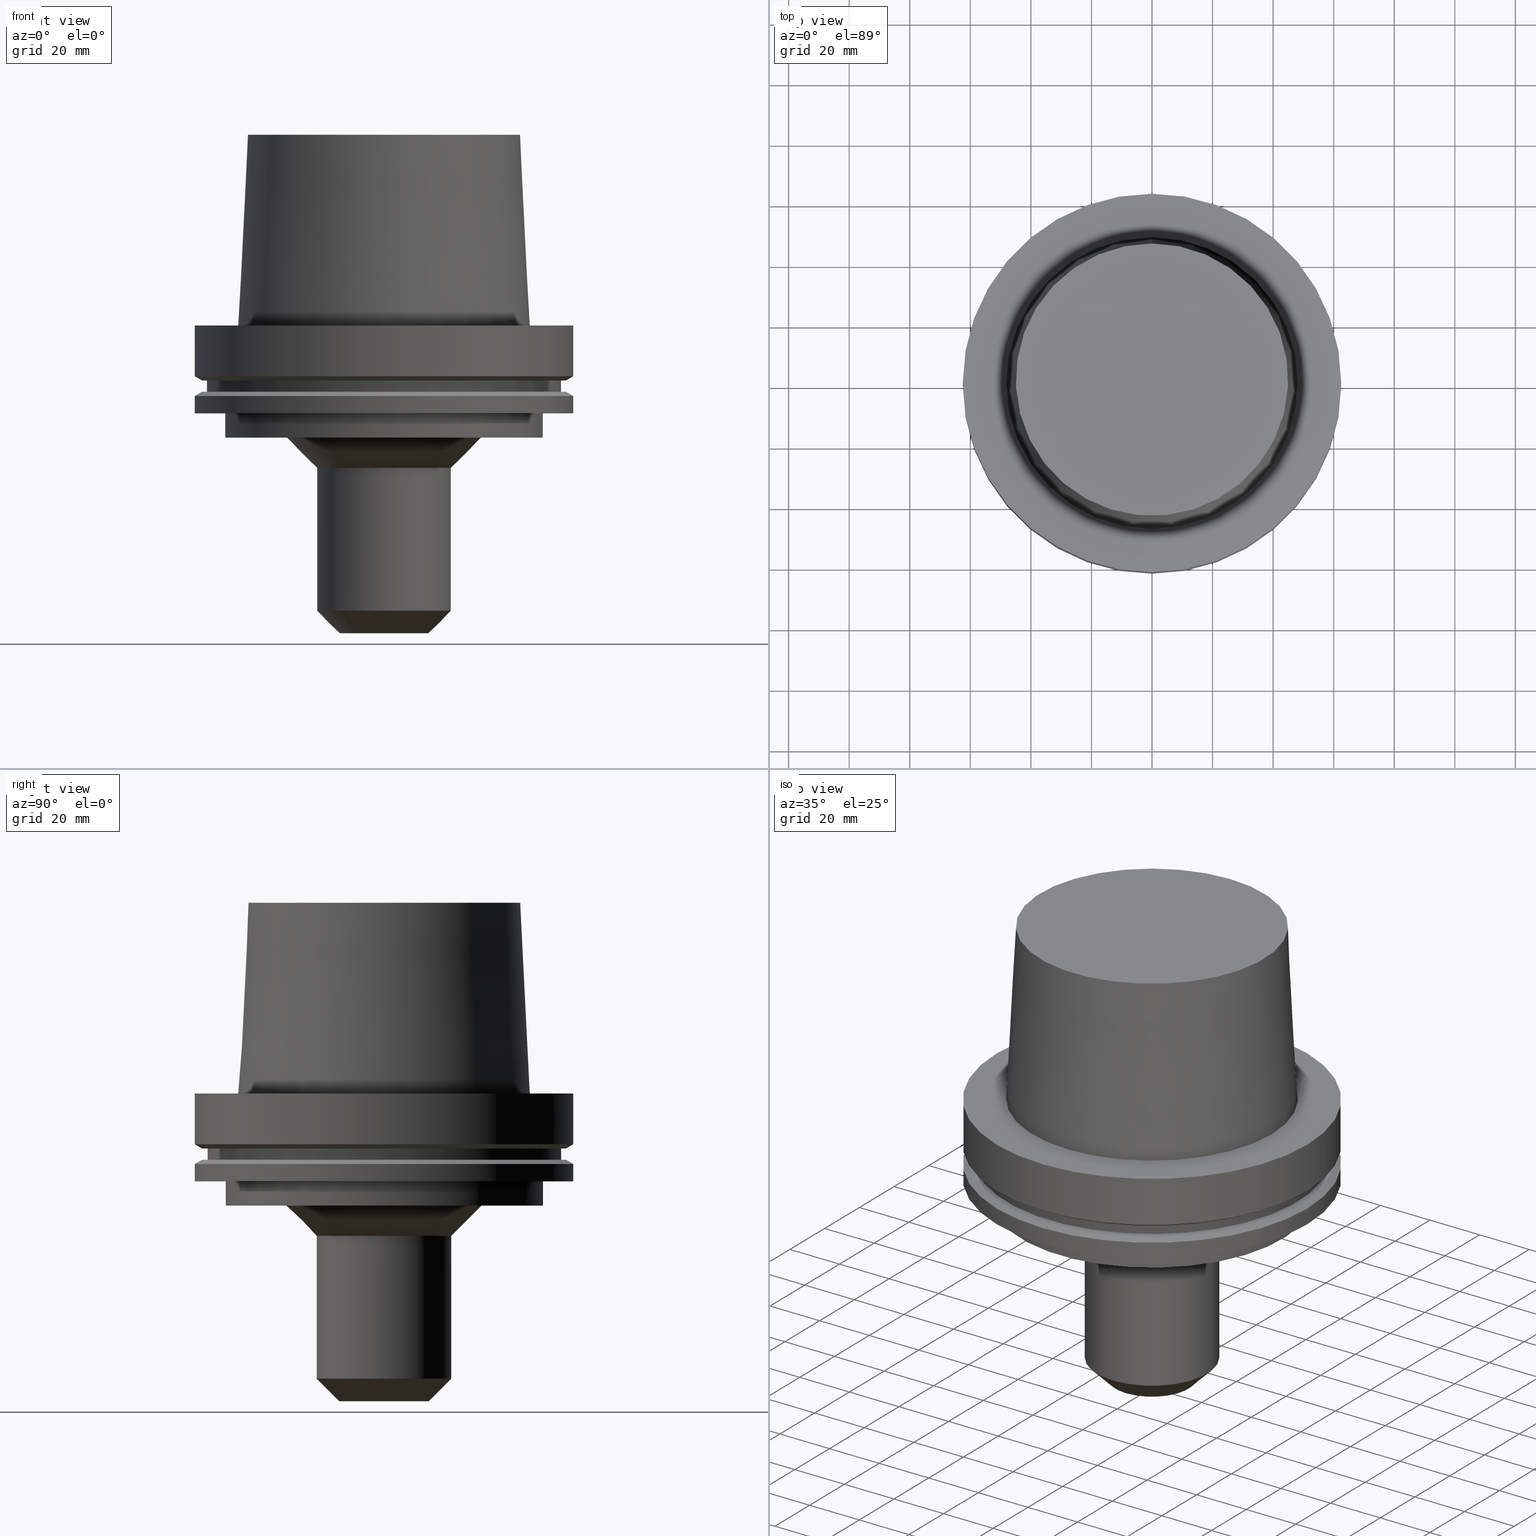
[diagram: canonical four-view strip — front | top / right | iso, engineering-drawing reading convention]
A machine part, canonical four-view strip (front | top / right | iso — engineering-drawing reading convention). The complete STEP part file that produces these views, byte-faithful:
ISO-10303-21;
HEADER;
FILE_DESCRIPTION((''),'1');
FILE_NAME('V:/02_3D_Field-HP\X2\FF71FF6FFF8CFF9F5916\X0\2013/02_Step_Field-HP\X2\FF71FF6FFF8CFF9F5916\X0\2013/HSK-A125-EM.750-4.stp','2017-07-11T00:15:30',(''),(''),'Spatial Interop R21 SP3','Kubotek KeyCreator 2011 V10.0.2 (22737)',' ');
FILE_SCHEMA(('automotive_design'));
ENDSEC;
DATA;
#1=MECHANICAL_DESIGN_GEOMETRIC_PRESENTATION_REPRESENTATION(' ',(#10,#11,#12,#13,#14,#15,#16,#17,#18,#19,#20,#21,#22,#23,#24,#25,#26,#27,#28,#29,#30,#31,#32,#33,#34,#35,#36,#37,#38,#39,#40,#41,#42,#43),#6);
#2=PRODUCT_DEFINITION_CONTEXT('',#44,'design');
#3=APPLICATION_PROTOCOL_DEFINITION('INTERNATIONAL STANDARD','automotive_design',1994,#44);
#4=PRODUCT_CATEGORY_RELATIONSHIP('NONE','NONE',#45,#46);
#5=SHAPE_DEFINITION_REPRESENTATION(#47,#48);
#6= (GEOMETRIC_REPRESENTATION_CONTEXT(3)GLOBAL_UNCERTAINTY_ASSIGNED_CONTEXT((#51))GLOBAL_UNIT_ASSIGNED_CONTEXT((#53,#54,#55))REPRESENTATION_CONTEXT('NONE','WORKSPACE'));
#10=STYLED_ITEM('',(#57,#58),#59);
#11=STYLED_ITEM('',(#60,#61),#62);
#12=STYLED_ITEM('',(#63),#64);
#13=STYLED_ITEM('',(#65),#66);
#14=STYLED_ITEM('',(#67),#68);
#15=STYLED_ITEM('',(#69,#70),#71);
#16=STYLED_ITEM('',(#72,#73),#74);
#17=STYLED_ITEM('',(#75,#76),#77);
#18=STYLED_ITEM('',(#78,#79),#80);
#19=STYLED_ITEM('',(#81,#82),#83);
#20=STYLED_ITEM('',(#84),#85);
#21=STYLED_ITEM('',(#86),#87);
#22=STYLED_ITEM('',(#88),#89);
#23=STYLED_ITEM('',(#90,#91),#92);
#24=STYLED_ITEM('',(#93,#94),#95);
#25=STYLED_ITEM('',(#96),#97);
#26=STYLED_ITEM('',(#98,#99),#100);
#27=STYLED_ITEM('',(#101),#102);
#28=STYLED_ITEM('',(#103),#104);
#29=STYLED_ITEM('',(#105,#106),#107);
#30=STYLED_ITEM('',(#108),#109);
#31=STYLED_ITEM('',(#110),#111);
#32=STYLED_ITEM('',(#112),#113);
#33=STYLED_ITEM('',(#114,#115),#116);
#34=STYLED_ITEM('',(#117,#118),#119);
#35=STYLED_ITEM('',(#120,#121),#122);
#36=STYLED_ITEM('',(#123,#124),#125);
#37=STYLED_ITEM('',(#126,#127),#128);
#38=STYLED_ITEM('',(#129),#130);
#39=STYLED_ITEM('',(#131,#132),#133);
#40=STYLED_ITEM('',(#134),#135);
#41=STYLED_ITEM('',(#136),#137);
#42=STYLED_ITEM('',(#138),#139);
#43=STYLED_ITEM('',(#140,#141),#142);
#44=APPLICATION_CONTEXT(' ');
#45=PRODUCT_CATEGORY('part','NONE');
#46=PRODUCT_RELATED_PRODUCT_CATEGORY('detail',' ',(#143));
#47=PRODUCT_DEFINITION_SHAPE('NONE','NONE',#144);
#48=ADVANCED_BREP_SHAPE_REPRESENTATION('Unnamed[1]',(#71,#145),#6);
#51=UNCERTAINTY_MEASURE_WITH_UNIT(LENGTH_MEASURE(1.0E-006),#53,'','');
#53= (CONVERSION_BASED_UNIT('MILLIMETRE',#148)LENGTH_UNIT()NAMED_UNIT(#151));
#54= (NAMED_UNIT(#153)PLANE_ANGLE_UNIT()SI_UNIT($,.RADIAN.));
#55= (NAMED_UNIT(#153)SOLID_ANGLE_UNIT()SI_UNIT($,.STERADIAN.));
#57=PRESENTATION_STYLE_ASSIGNMENT((#159));
#58=PRESENTATION_STYLE_ASSIGNMENT((#160));
#59=ADVANCED_FACE('Unnamed[1]',(#161,#162),#163,.T.);
#60=PRESENTATION_STYLE_ASSIGNMENT((#164));
#61=PRESENTATION_STYLE_ASSIGNMENT((#165));
#62=ADVANCED_FACE('Unnamed[1]',(#166),#167,.T.);
#63=PRESENTATION_STYLE_ASSIGNMENT((#168));
#64=EDGE_CURVE('Unnamed[1]',#169,#169,#170,.T.);
#65=PRESENTATION_STYLE_ASSIGNMENT((#171));
#66=EDGE_CURVE('Unnamed[1]',#172,#172,#173,.T.);
#67=PRESENTATION_STYLE_ASSIGNMENT((#174));
#68=EDGE_CURVE('Unnamed[1]',#175,#175,#176,.T.);
#69=PRESENTATION_STYLE_ASSIGNMENT((#177));
#70=PRESENTATION_STYLE_ASSIGNMENT((#178));
#71=MANIFOLD_SOLID_BREP('Unnamed[1]',#179);
#72=PRESENTATION_STYLE_ASSIGNMENT((#180));
#73=PRESENTATION_STYLE_ASSIGNMENT((#181));
#74=ADVANCED_FACE('Unnamed[1]',(#182,#183),#184,.T.);
#75=PRESENTATION_STYLE_ASSIGNMENT((#185));
#76=PRESENTATION_STYLE_ASSIGNMENT((#186));
#77=ADVANCED_FACE('Unnamed[1]',(#187),#188,.T.);
#78=PRESENTATION_STYLE_ASSIGNMENT((#189));
#79=PRESENTATION_STYLE_ASSIGNMENT((#190));
#80=ADVANCED_FACE('Unnamed[1]',(#191,#192),#193,.T.);
#81=PRESENTATION_STYLE_ASSIGNMENT((#194));
#82=PRESENTATION_STYLE_ASSIGNMENT((#195));
#83=ADVANCED_FACE('Unnamed[1]',(#196,#197),#198,.T.);
#84=PRESENTATION_STYLE_ASSIGNMENT((#199));
#85=EDGE_CURVE('Unnamed[1]',#200,#200,#201,.T.);
#86=PRESENTATION_STYLE_ASSIGNMENT((#202));
#87=EDGE_CURVE('Unnamed[1]',#203,#203,#204,.T.);
#88=PRESENTATION_STYLE_ASSIGNMENT((#205));
#89=EDGE_CURVE('Unnamed[1]',#206,#206,#207,.T.);
#90=PRESENTATION_STYLE_ASSIGNMENT((#208));
#91=PRESENTATION_STYLE_ASSIGNMENT((#209));
#92=ADVANCED_FACE('Unnamed[1]',(#210,#211),#212,.T.);
#93=PRESENTATION_STYLE_ASSIGNMENT((#213));
#94=PRESENTATION_STYLE_ASSIGNMENT((#214));
#95=ADVANCED_FACE('Unnamed[1]',(#215,#216),#217,.T.);
#96=PRESENTATION_STYLE_ASSIGNMENT((#218));
#97=EDGE_CURVE('Unnamed[1]',#219,#219,#220,.T.);
#98=PRESENTATION_STYLE_ASSIGNMENT((#221));
#99=PRESENTATION_STYLE_ASSIGNMENT((#222));
#100=ADVANCED_FACE('Unnamed[1]',(#223,#224),#225,.T.);
#101=PRESENTATION_STYLE_ASSIGNMENT((#226));
#102=EDGE_CURVE('Unnamed[1]',#227,#227,#228,.T.);
#103=PRESENTATION_STYLE_ASSIGNMENT((#229));
#104=EDGE_CURVE('Unnamed[1]',#230,#230,#231,.T.);
#105=PRESENTATION_STYLE_ASSIGNMENT((#232));
#106=PRESENTATION_STYLE_ASSIGNMENT((#233));
#107=ADVANCED_FACE('Unnamed[1]',(#234,#235),#236,.T.);
#108=PRESENTATION_STYLE_ASSIGNMENT((#237));
#109=EDGE_CURVE('Unnamed[1]',#238,#238,#239,.T.);
#110=PRESENTATION_STYLE_ASSIGNMENT((#240));
#111=EDGE_CURVE('Unnamed[1]',#241,#241,#242,.T.);
#112=PRESENTATION_STYLE_ASSIGNMENT((#243));
#113=EDGE_CURVE('Unnamed[1]',#244,#244,#245,.T.);
#114=PRESENTATION_STYLE_ASSIGNMENT((#246));
#115=PRESENTATION_STYLE_ASSIGNMENT((#247));
#116=ADVANCED_FACE('Unnamed[1]',(#248,#249),#250,.T.);
#117=PRESENTATION_STYLE_ASSIGNMENT((#251));
#118=PRESENTATION_STYLE_ASSIGNMENT((#252));
#119=ADVANCED_FACE('Unnamed[1]',(#253,#254),#255,.T.);
#120=PRESENTATION_STYLE_ASSIGNMENT((#256));
#121=PRESENTATION_STYLE_ASSIGNMENT((#257));
#122=ADVANCED_FACE('Unnamed[1]',(#258,#259),#260,.T.);
#123=PRESENTATION_STYLE_ASSIGNMENT((#261));
#124=PRESENTATION_STYLE_ASSIGNMENT((#262));
#125=ADVANCED_FACE('Unnamed[1]',(#263,#264),#265,.T.);
#126=PRESENTATION_STYLE_ASSIGNMENT((#266));
#127=PRESENTATION_STYLE_ASSIGNMENT((#267));
#128=ADVANCED_FACE('Unnamed[1]',(#268,#269),#270,.T.);
#129=PRESENTATION_STYLE_ASSIGNMENT((#271));
#130=EDGE_CURVE('Unnamed[1]',#272,#272,#273,.T.);
#131=PRESENTATION_STYLE_ASSIGNMENT((#274));
#132=PRESENTATION_STYLE_ASSIGNMENT((#275));
#133=ADVANCED_FACE('Unnamed[1]',(#276,#277),#278,.T.);
#134=PRESENTATION_STYLE_ASSIGNMENT((#279));
#135=EDGE_CURVE('Unnamed[1]',#280,#280,#281,.T.);
#136=PRESENTATION_STYLE_ASSIGNMENT((#282));
#137=EDGE_CURVE('Unnamed[1]',#283,#283,#284,.T.);
#138=PRESENTATION_STYLE_ASSIGNMENT((#285));
#139=EDGE_CURVE('Unnamed[1]',#286,#286,#287,.T.);
#140=PRESENTATION_STYLE_ASSIGNMENT((#288));
#141=PRESENTATION_STYLE_ASSIGNMENT((#289));
#142=ADVANCED_FACE('Unnamed[1]',(#290,#291),#292,.T.);
#143=PRODUCT('Unnamed[1]','Unnamed[1]','PART-Unnamed[1]-DESC',(#293));
#144=PRODUCT_DEFINITION('NONE','NONE',#294,#2);
#145=AXIS2_PLACEMENT_3D('',#295,#296,#297);
#148=LENGTH_MEASURE_WITH_UNIT(LENGTH_MEASURE(1.0),#298);
#151=DIMENSIONAL_EXPONENTS(1.0,0.0,0.0,0.0,0.0,0.0,0.0);
#153=DIMENSIONAL_EXPONENTS(0.0,0.0,0.0,0.0,0.0,0.0,0.0);
#159=SURFACE_STYLE_USAGE(.BOTH.,#299);
#160=CURVE_STYLE('',#300,POSITIVE_LENGTH_MEASURE(1000.0),#301);
#161=FACE_BOUND('',#302,.T.);
#162=FACE_BOUND('',#303,.T.);
#163=CYLINDRICAL_SURFACE('',#304,52.5);
#164=SURFACE_STYLE_USAGE(.BOTH.,#305);
#165=CURVE_STYLE('',#306,POSITIVE_LENGTH_MEASURE(1000.0),#307);
#166=FACE_OUTER_BOUND('',#308,.T.);
#167=PLANE('',#309);
#168=CURVE_STYLE('',#310,POSITIVE_LENGTH_MEASURE(1000.0),#311);
#169=VERTEX_POINT('',#312);
#170=CIRCLE('',#313,22.225);
#171=CURVE_STYLE('',#314,POSITIVE_LENGTH_MEASURE(1000.0),#315);
#172=VERTEX_POINT('',#316);
#173=CIRCLE('',#317,52.5000000000003);
#174=CURVE_STYLE('',#318,POSITIVE_LENGTH_MEASURE(1000.0),#319);
#175=VERTEX_POINT('',#320);
#176=CIRCLE('',#321,60.1225952641912);
#177=SURFACE_STYLE_USAGE(.BOTH.,#322);
#178=CURVE_STYLE('',#323,POSITIVE_LENGTH_MEASURE(1000.0),#324);
#179=CLOSED_SHELL('',(#62,#128,#107,#83,#116,#125,#95,#100,#80,#142,#122,#59,#92,#133,#119,#74,#77));
#180=SURFACE_STYLE_USAGE(.BOTH.,#325);
#181=CURVE_STYLE('',#326,POSITIVE_LENGTH_MEASURE(1000.0),#327);
#182=FACE_BOUND('',#328,.T.);
#183=FACE_BOUND('',#329,.T.);
#184=CONICAL_SURFACE('',#330,18.4875,0.785398163397426);
#185=SURFACE_STYLE_USAGE(.BOTH.,#331);
#186=CURVE_STYLE('',#332,POSITIVE_LENGTH_MEASURE(1000.0),#333);
#187=FACE_OUTER_BOUND('',#334,.T.);
#188=PLANE('',#335);
#189=SURFACE_STYLE_USAGE(.BOTH.,#336);
#190=CURVE_STYLE('',#337,POSITIVE_LENGTH_MEASURE(1000.0),#338);
#191=FACE_BOUND('',#339,.T.);
#192=FACE_BOUND('',#340,.T.);
#193=CONICAL_SURFACE('',#341,61.311297632097,1.04719755119646);
#194=SURFACE_STYLE_USAGE(.BOTH.,#342);
#195=CURVE_STYLE('',#343,POSITIVE_LENGTH_MEASURE(1000.0),#344);
#196=FACE_BOUND('',#345,.T.);
#197=FACE_BOUND('',#346,.T.);
#198=CYLINDRICAL_SURFACE('',#347,62.5000000000001);
#199=CURVE_STYLE('',#348,POSITIVE_LENGTH_MEASURE(1000.0),#349);
#200=VERTEX_POINT('',#350);
#201=CIRCLE('',#351,62.5000000000002);
#202=CURVE_STYLE('',#352,POSITIVE_LENGTH_MEASURE(1000.0),#353);
#203=VERTEX_POINT('',#354);
#204=CIRCLE('',#355,44.9779398797591);
#205=CURVE_STYLE('',#356,POSITIVE_LENGTH_MEASURE(1000.0),#357);
#206=VERTEX_POINT('',#358);
#207=CIRCLE('',#359,62.5);
#208=SURFACE_STYLE_USAGE(.BOTH.,#360);
#209=CURVE_STYLE('',#361,POSITIVE_LENGTH_MEASURE(1000.0),#362);
#210=FACE_BOUND('',#363,.T.);
#211=FACE_OUTER_BOUND('',#364,.T.);
#212=PLANE('',#365);
#213=SURFACE_STYLE_USAGE(.BOTH.,#366);
#214=CURVE_STYLE('',#367,POSITIVE_LENGTH_MEASURE(1000.0),#368);
#215=FACE_BOUND('',#369,.T.);
#216=FACE_BOUND('',#370,.T.);
#217=CYLINDRICAL_SURFACE('',#371,58.4999999999999);
#218=CURVE_STYLE('',#372,POSITIVE_LENGTH_MEASURE(1000.0),#373);
#219=VERTEX_POINT('',#374);
#220=CIRCLE('',#375,62.5);
#221=SURFACE_STYLE_USAGE(.BOTH.,#376);
#222=CURVE_STYLE('',#377,POSITIVE_LENGTH_MEASURE(1000.0),#378);
#223=FACE_OUTER_BOUND('',#379,.T.);
#224=FACE_BOUND('',#380,.T.);
#225=PLANE('',#381);
#226=CURVE_STYLE('',#382,POSITIVE_LENGTH_MEASURE(1000.0),#383);
#227=VERTEX_POINT('',#384);
#228=CIRCLE('',#385,32.225);
#229=CURVE_STYLE('',#386,POSITIVE_LENGTH_MEASURE(1000.0),#387);
#230=VERTEX_POINT('',#388);
#231=CIRCLE('',#389,14.75);
#232=SURFACE_STYLE_USAGE(.BOTH.,#390);
#233=CURVE_STYLE('',#391,POSITIVE_LENGTH_MEASURE(1000.0),#392);
#234=FACE_OUTER_BOUND('',#393,.T.);
#235=FACE_BOUND('',#394,.T.);
#236=PLANE('',#395);
#237=CURVE_STYLE('',#396,POSITIVE_LENGTH_MEASURE(1000.0),#397);
#238=VERTEX_POINT('',#398);
#239=CIRCLE('',#399,60.122595264194);
#240=CURVE_STYLE('',#400,POSITIVE_LENGTH_MEASURE(1000.0),#401);
#241=VERTEX_POINT('',#402);
#242=CIRCLE('',#403,58.5);
#243=CURVE_STYLE('',#404,POSITIVE_LENGTH_MEASURE(1000.0),#405);
#244=VERTEX_POINT('',#406);
#245=CIRCLE('',#407,52.4999999999998);
#246=SURFACE_STYLE_USAGE(.BOTH.,#408);
#247=CURVE_STYLE('',#409,POSITIVE_LENGTH_MEASURE(1000.0),#410);
#248=FACE_BOUND('',#411,.T.);
#249=FACE_BOUND('',#412,.T.);
#250=CONICAL_SURFACE('',#413,61.3112976320956,1.04719755119668);
#251=SURFACE_STYLE_USAGE(.BOTH.,#414);
#252=CURVE_STYLE('',#415,POSITIVE_LENGTH_MEASURE(1000.0),#416);
#253=FACE_BOUND('',#417,.T.);
#254=FACE_BOUND('',#418,.T.);
#255=CYLINDRICAL_SURFACE('',#419,22.225);
#256=SURFACE_STYLE_USAGE(.BOTH.,#420);
#257=CURVE_STYLE('',#421,POSITIVE_LENGTH_MEASURE(1000.0),#422);
#258=FACE_BOUND('',#423,.T.);
#259=FACE_OUTER_BOUND('',#424,.T.);
#260=PLANE('',#425);
#261=SURFACE_STYLE_USAGE(.BOTH.,#426);
#262=CURVE_STYLE('',#427,POSITIVE_LENGTH_MEASURE(1000.0),#428);
#263=FACE_BOUND('',#429,.T.);
#264=FACE_OUTER_BOUND('',#430,.T.);
#265=PLANE('',#431);
#266=SURFACE_STYLE_USAGE(.BOTH.,#432);
#267=CURVE_STYLE('',#433,POSITIVE_LENGTH_MEASURE(1000.0),#434);
#268=FACE_BOUND('',#435,.T.);
#269=FACE_BOUND('',#436,.T.);
#270=CONICAL_SURFACE('',#437,46.5560961923844,0.0500583457465964);
#271=CURVE_STYLE('',#438,POSITIVE_LENGTH_MEASURE(1000.0),#439);
#272=VERTEX_POINT('',#440);
#273=CIRCLE('',#441,22.225);
#274=SURFACE_STYLE_USAGE(.BOTH.,#442);
#275=CURVE_STYLE('',#443,POSITIVE_LENGTH_MEASURE(1000.0),#444);
#276=FACE_BOUND('',#445,.T.);
#277=FACE_BOUND('',#446,.T.);
#278=CONICAL_SURFACE('',#447,27.225,0.785398163397449);
#279=CURVE_STYLE('',#448,POSITIVE_LENGTH_MEASURE(1000.0),#449);
#280=VERTEX_POINT('',#450);
#281=CIRCLE('',#451,58.4999999999998);
#282=CURVE_STYLE('',#452,POSITIVE_LENGTH_MEASURE(1000.0),#453);
#283=VERTEX_POINT('',#454);
#284=CIRCLE('',#455,48.1342525050097);
#285=CURVE_STYLE('',#456,POSITIVE_LENGTH_MEASURE(1000.0),#457);
#286=VERTEX_POINT('',#458);
#287=CIRCLE('',#459,62.5);
#288=SURFACE_STYLE_USAGE(.BOTH.,#460);
#289=CURVE_STYLE('',#461,POSITIVE_LENGTH_MEASURE(1000.0),#462);
#290=FACE_BOUND('',#463,.T.);
#291=FACE_BOUND('',#464,.T.);
#292=CYLINDRICAL_SURFACE('',#465,62.5);
#293=PRODUCT_CONTEXT('',#44,'mechanical');
#294=PRODUCT_DEFINITION_FORMATION_WITH_SPECIFIED_SOURCE(' ','NONE',#143,.NOT_KNOWN.);
#295=CARTESIAN_POINT('',(0.0,0.0,0.0));
#296=DIRECTION('',(0.0,0.0,1.0));
#297=DIRECTION('',(1.0,0.0,0.0));
#298= (NAMED_UNIT(#151)LENGTH_UNIT()SI_UNIT(.MILLI.,.METRE.));
#299=SURFACE_SIDE_STYLE('',(#467));
#300=DRAUGHTING_PRE_DEFINED_CURVE_FONT('continuous');
#301=COLOUR_RGB('',0.0,1.0,0.0);
#302=EDGE_LOOP('',(#468));
#303=EDGE_LOOP('',(#469));
#304=AXIS2_PLACEMENT_3D('',#470,#471,#472);
#305=SURFACE_SIDE_STYLE('',(#473));
#306=DRAUGHTING_PRE_DEFINED_CURVE_FONT('continuous');
#307=COLOUR_RGB('',0.0,1.0,0.0);
#308=EDGE_LOOP('',(#474));
#309=AXIS2_PLACEMENT_3D('',#475,#476,#477);
#310=DRAUGHTING_PRE_DEFINED_CURVE_FONT('continuous');
#311=COLOUR_RGB('',0.0,1.0,0.0);
#312=CARTESIAN_POINT('',(2.87791997799628E-015,22.225,-47.0));
#313=AXIS2_PLACEMENT_3D('',#478,#479,#480);
#314=DRAUGHTING_PRE_DEFINED_CURVE_FONT('continuous');
#315=COLOUR_RGB('',0.0,1.0,0.0);
#316=CARTESIAN_POINT('',(1.77573785876367E-015,52.5000000000003,-29.0000000000001));
#317=AXIS2_PLACEMENT_3D('',#481,#482,#483);
#318=DRAUGHTING_PRE_DEFINED_CURVE_FONT('continuous');
#319=COLOUR_RGB('',0.0,1.0,0.0);
#320=CARTESIAN_POINT('',(1.10983616172729E-015,60.1225952641912,-18.1250000000001));
#321=AXIS2_PLACEMENT_3D('',#484,#485,#486);
#322=SURFACE_SIDE_STYLE('',(#487));
#323=DRAUGHTING_PRE_DEFINED_CURVE_FONT('continuous');
#324=COLOUR_RGB('',0.0,1.0,0.0);
#325=SURFACE_SIDE_STYLE('',(#488));
#326=DRAUGHTING_PRE_DEFINED_CURVE_FONT('continuous');
#327=COLOUR_RGB('',0.0,1.0,0.0);
#328=EDGE_LOOP('',(#489));
#329=EDGE_LOOP('',(#490));
#330=AXIS2_PLACEMENT_3D('',#491,#492,#493);
#331=SURFACE_SIDE_STYLE('',(#494));
#332=DRAUGHTING_PRE_DEFINED_CURVE_FONT('continuous');
#333=COLOUR_RGB('',0.0,1.0,0.0);
#334=EDGE_LOOP('',(#495));
#335=AXIS2_PLACEMENT_3D('',#496,#497,#498);
#336=SURFACE_SIDE_STYLE('',(#499));
#337=DRAUGHTING_PRE_DEFINED_CURVE_FONT('continuous');
#338=COLOUR_RGB('',0.0,1.0,0.0);
#339=EDGE_LOOP('',(#500));
#340=EDGE_LOOP('',(#501));
#341=AXIS2_PLACEMENT_3D('',#502,#503,#504);
#342=SURFACE_SIDE_STYLE('',(#505));
#343=DRAUGHTING_PRE_DEFINED_CURVE_FONT('continuous');
#344=COLOUR_RGB('',0.0,1.0,0.0);
#345=EDGE_LOOP('',(#506));
#346=EDGE_LOOP('',(#507));
#347=AXIS2_PLACEMENT_3D('',#508,#509,#510);
#348=DRAUGHTING_PRE_DEFINED_CURVE_FONT('continuous');
#349=COLOUR_RGB('',0.0,1.0,0.0);
#350=CARTESIAN_POINT('',(-5.58935713239973E-030,62.5000000000002,8.63540424946709E-014));
#351=AXIS2_PLACEMENT_3D('',#511,#512,#513);
#352=DRAUGHTING_PRE_DEFINED_CURVE_FONT('continuous');
#353=COLOUR_RGB('',0.0,1.0,0.0);
#354=CARTESIAN_POINT('',(-3.85763741731416E-015,44.9779398797591,62.9999999999999));
#355=AXIS2_PLACEMENT_3D('',#514,#515,#516);
#356=DRAUGHTING_PRE_DEFINED_CURVE_FONT('continuous');
#357=COLOUR_RGB('',0.0,1.0,0.0);
#358=CARTESIAN_POINT('',(1.42350465640827E-015,62.5,-23.2475952641916));
#359=AXIS2_PLACEMENT_3D('',#517,#518,#519);
#360=SURFACE_SIDE_STYLE('',(#520));
#361=DRAUGHTING_PRE_DEFINED_CURVE_FONT('continuous');
#362=COLOUR_RGB('',0.0,1.0,0.0);
#363=EDGE_LOOP('',(#521));
#364=EDGE_LOOP('',(#522));
#365=AXIS2_PLACEMENT_3D('',#523,#524,#525);
#366=SURFACE_SIDE_STYLE('',(#526));
#367=DRAUGHTING_PRE_DEFINED_CURVE_FONT('continuous');
#368=COLOUR_RGB('',0.0,1.0,0.0);
#369=EDGE_LOOP('',(#527));
#370=EDGE_LOOP('',(#528));
#371=AXIS2_PLACEMENT_3D('',#529,#530,#531);
#372=DRAUGHTING_PRE_DEFINED_CURVE_FONT('continuous');
#373=COLOUR_RGB('',0.0,1.0,0.0);
#374=CARTESIAN_POINT('',(1.77573785876367E-015,62.5,-29.0000000000001));
#375=AXIS2_PLACEMENT_3D('',#532,#533,#534);
#376=SURFACE_SIDE_STYLE('',(#535));
#377=DRAUGHTING_PRE_DEFINED_CURVE_FONT('continuous');
#378=COLOUR_RGB('',0.0,1.0,0.0);
#379=EDGE_LOOP('',(#536));
#380=EDGE_LOOP('',(#537));
#381=AXIS2_PLACEMENT_3D('',#538,#539,#540);
#382=DRAUGHTING_PRE_DEFINED_CURVE_FONT('continuous');
#383=COLOUR_RGB('',0.0,1.0,0.0);
#384=CARTESIAN_POINT('',(2.26559657842261E-015,32.225,-37.0));
#385=AXIS2_PLACEMENT_3D('',#541,#542,#543);
#386=DRAUGHTING_PRE_DEFINED_CURVE_FONT('continuous');
#387=COLOUR_RGB('',0.0,1.0,0.0);
#388=CARTESIAN_POINT('',(6.22120573966854E-015,14.75,-101.6));
#389=AXIS2_PLACEMENT_3D('',#544,#545,#546);
#390=SURFACE_SIDE_STYLE('',(#547));
#391=DRAUGHTING_PRE_DEFINED_CURVE_FONT('continuous');
#392=COLOUR_RGB('',0.0,1.0,0.0);
#393=EDGE_LOOP('',(#548));
#394=EDGE_LOOP('',(#549));
#395=AXIS2_PLACEMENT_3D('',#550,#551,#552);
#396=DRAUGHTING_PRE_DEFINED_CURVE_FONT('continuous');
#397=COLOUR_RGB('',0.0,1.0,0.0);
#398=CARTESIAN_POINT('',(1.33945743656747E-015,60.122595264194,-21.8750000000009));
#399=AXIS2_PLACEMENT_3D('',#553,#554,#555);
#400=DRAUGHTING_PRE_DEFINED_CURVE_FONT('continuous');
#401=COLOUR_RGB('',0.0,1.0,0.0);
#402=CARTESIAN_POINT('',(1.10983616172739E-015,58.5,-18.1250000000017));
#403=AXIS2_PLACEMENT_3D('',#556,#557,#558);
#404=DRAUGHTING_PRE_DEFINED_CURVE_FONT('continuous');
#405=COLOUR_RGB('',0.0,1.0,0.0);
#406=CARTESIAN_POINT('',(2.26559657842261E-015,52.4999999999998,-37.0));
#407=AXIS2_PLACEMENT_3D('',#559,#560,#561);
#408=SURFACE_SIDE_STYLE('',(#562));
#409=DRAUGHTING_PRE_DEFINED_CURVE_FONT('continuous');
#410=COLOUR_RGB('',0.0,1.0,0.0);
#411=EDGE_LOOP('',(#563));
#412=EDGE_LOOP('',(#564));
#413=AXIS2_PLACEMENT_3D('',#565,#566,#567);
#414=SURFACE_SIDE_STYLE('',(#568));
#415=DRAUGHTING_PRE_DEFINED_CURVE_FONT('continuous');
#416=COLOUR_RGB('',0.0,1.0,0.0);
#417=EDGE_LOOP('',(#569));
#418=EDGE_LOOP('',(#570));
#419=AXIS2_PLACEMENT_3D('',#571,#572,#573);
#420=SURFACE_SIDE_STYLE('',(#574));
#421=DRAUGHTING_PRE_DEFINED_CURVE_FONT('continuous');
#422=COLOUR_RGB('',0.0,1.0,0.0);
#423=EDGE_LOOP('',(#575));
#424=EDGE_LOOP('',(#576));
#425=AXIS2_PLACEMENT_3D('',#577,#578,#579);
#426=SURFACE_SIDE_STYLE('',(#580));
#427=DRAUGHTING_PRE_DEFINED_CURVE_FONT('continuous');
#428=COLOUR_RGB('',0.0,1.0,0.0);
#429=EDGE_LOOP('',(#581));
#430=EDGE_LOOP('',(#582));
#431=AXIS2_PLACEMENT_3D('',#583,#584,#585);
#432=SURFACE_SIDE_STYLE('',(#586));
#433=DRAUGHTING_PRE_DEFINED_CURVE_FONT('continuous');
#434=COLOUR_RGB('',0.0,1.0,0.0);
#435=EDGE_LOOP('',(#587));
#436=EDGE_LOOP('',(#588));
#437=AXIS2_PLACEMENT_3D('',#589,#590,#591);
#438=DRAUGHTING_PRE_DEFINED_CURVE_FONT('continuous');
#439=COLOUR_RGB('',0.0,1.0,0.0);
#440=CARTESIAN_POINT('',(5.7634939984872E-015,22.225,-94.1249999999995));
#441=AXIS2_PLACEMENT_3D('',#592,#593,#594);
#442=SURFACE_SIDE_STYLE('',(#595));
#443=DRAUGHTING_PRE_DEFINED_CURVE_FONT('continuous');
#444=COLOUR_RGB('',0.0,1.0,0.0);
#445=EDGE_LOOP('',(#596));
#446=EDGE_LOOP('',(#597));
#447=AXIS2_PLACEMENT_3D('',#598,#599,#600);
#448=DRAUGHTING_PRE_DEFINED_CURVE_FONT('continuous');
#449=COLOUR_RGB('',0.0,1.0,0.0);
#450=CARTESIAN_POINT('',(1.33945743656732E-015,58.4999999999998,-21.8749999999984));
#451=AXIS2_PLACEMENT_3D('',#601,#602,#603);
#452=DRAUGHTING_PRE_DEFINED_CURVE_FONT('continuous');
#453=COLOUR_RGB('',0.0,1.0,0.0);
#454=CARTESIAN_POINT('',(3.88342032297484E-029,48.1342525050097,-6.38005254174039E-013));
#455=AXIS2_PLACEMENT_3D('',#604,#605,#606);
#456=DRAUGHTING_PRE_DEFINED_CURVE_FONT('continuous');
#457=COLOUR_RGB('',0.0,1.0,0.0);
#458=CARTESIAN_POINT('',(1.02578894188644E-015,62.5,-16.7524047358084));
#459=AXIS2_PLACEMENT_3D('',#607,#608,#609);
#460=SURFACE_SIDE_STYLE('',(#610));
#461=DRAUGHTING_PRE_DEFINED_CURVE_FONT('continuous');
#462=COLOUR_RGB('',0.0,1.0,0.0);
#463=EDGE_LOOP('',(#611));
#464=EDGE_LOOP('',(#612));
#465=AXIS2_PLACEMENT_3D('',#613,#614,#615);
#467=SURFACE_STYLE_FILL_AREA(#616);
#468=ORIENTED_EDGE('',*,*,#113,.F.);
#469=ORIENTED_EDGE('',*,*,#66,.T.);
#470=CARTESIAN_POINT('',(2.02066721859314E-015,4.04133443718627E-015,-33.0000000000001));
#471=DIRECTION('',(6.12323399573677E-017,1.22464679914708E-016,-1.0));
#472=DIRECTION('',(-1.23259516440783E-032,1.0,1.22464679914708E-016));
#473=SURFACE_STYLE_FILL_AREA(#617);
#474=ORIENTED_EDGE('',*,*,#87,.F.);
#475=CARTESIAN_POINT('',(-3.85763741731416E-015,22.4889699398795,62.9999999999999));
#476=DIRECTION('',(-6.12323399573677E-017,-1.22464679914735E-016,1.0));
#477=DIRECTION('',(1.23259516440783E-032,-1.0,-1.22464679914735E-016));
#478=CARTESIAN_POINT('',(2.87791997799628E-015,5.75583995599256E-015,-47.0));
#479=DIRECTION('',(6.12323399573676E-017,1.22464679914758E-016,-1.0));
#480=DIRECTION('',(-1.23259516440815E-032,1.0,1.22464679914758E-016));
#481=CARTESIAN_POINT('',(1.77573785876367E-015,3.55147571752733E-015,-29.0000000000001));
#482=DIRECTION('',(6.12323399573677E-017,1.22464679914708E-016,-1.0));
#483=DIRECTION('',(-1.23259516440782E-032,1.0,1.22464679914708E-016));
#484=CARTESIAN_POINT('',(1.10983616172729E-015,2.21967232345459E-015,-18.1250000000001));
#485=DIRECTION('',(6.12323399573677E-017,1.22464679914743E-016,-1.0));
#486=DIRECTION('',(-1.23259516440797E-032,1.0,1.22464679914743E-016));
#487=SURFACE_STYLE_FILL_AREA(#618);
#488=SURFACE_STYLE_FILL_AREA(#619);
#489=ORIENTED_EDGE('',*,*,#104,.F.);
#490=ORIENTED_EDGE('',*,*,#130,.T.);
#491=CARTESIAN_POINT('',(5.99234986907787E-015,1.19846997381557E-014,-97.8624999999996));
#492=DIRECTION('',(-6.12323399573677E-017,-1.22464679914736E-016,1.0));
#493=DIRECTION('',(-1.23259516440802E-032,1.0,1.22464679914736E-016));
#494=SURFACE_STYLE_FILL_AREA(#620);
#495=ORIENTED_EDGE('',*,*,#104,.T.);
#496=CARTESIAN_POINT('',(6.22120573966854E-015,7.37500000000002,-101.6));
#497=DIRECTION('',(6.12323399573677E-017,3.97625578912206E-015,-1.0));
#498=DIRECTION('',(-2.48302598967742E-031,1.0,3.97625578912206E-015));
#499=SURFACE_STYLE_FILL_AREA(#621);
#500=ORIENTED_EDGE('',*,*,#89,.F.);
#501=ORIENTED_EDGE('',*,*,#109,.T.);
#502=CARTESIAN_POINT('',(1.38148104648787E-015,2.76296209297574E-015,-22.5612976320962));
#503=DIRECTION('',(6.12323399573677E-017,1.22464679914783E-016,-1.0));
#504=DIRECTION('',(-1.23259516440758E-032,1.0,1.22464679914783E-016));
#505=SURFACE_STYLE_FILL_AREA(#622);
#506=ORIENTED_EDGE('',*,*,#139,.F.);
#507=ORIENTED_EDGE('',*,*,#85,.T.);
#508=CARTESIAN_POINT('',(5.12894470943215E-016,1.02578894188643E-015,-8.37620236790416));
#509=DIRECTION('',(6.12323399573677E-017,1.22464679914723E-016,-1.0));
#510=DIRECTION('',(-1.23259516440783E-032,1.0,1.22464679914723E-016));
#511=CARTESIAN_POINT('',(-5.22098332203606E-030,-1.04419666440721E-029,8.5265128291212E-014));
#512=DIRECTION('',(6.12323399573677E-017,1.22464679914723E-016,-1.0));
#513=DIRECTION('',(-1.23259516440783E-032,1.0,1.22464679914723E-016));
#514=CARTESIAN_POINT('',(-3.85763741731416E-015,-7.71527483462831E-015,62.9999999999999));
#515=DIRECTION('',(6.12323399573677E-017,1.22464679914791E-016,-1.0));
#516=DIRECTION('',(-1.23259516440771E-032,1.0,1.22464679914791E-016));
#517=CARTESIAN_POINT('',(1.42350465640827E-015,2.84700931281654E-015,-23.2475952641916));
#518=DIRECTION('',(6.12323399573677E-017,1.22464679914723E-016,-1.0));
#519=DIRECTION('',(-1.23259516440783E-032,1.0,1.22464679914723E-016));
#520=SURFACE_STYLE_FILL_AREA(#623);
#521=ORIENTED_EDGE('',*,*,#102,.F.);
#522=ORIENTED_EDGE('',*,*,#113,.T.);
#523=CARTESIAN_POINT('',(2.26559657842261E-015,42.3624999999999,-37.0));
#524=DIRECTION('',(6.12323399573677E-017,1.22464679914735E-016,-1.0));
#525=DIRECTION('',(-1.23259516440783E-032,1.0,1.22464679914735E-016));
#526=SURFACE_STYLE_FILL_AREA(#624);
#527=ORIENTED_EDGE('',*,*,#135,.F.);
#528=ORIENTED_EDGE('',*,*,#111,.T.);
#529=CARTESIAN_POINT('',(1.22464679914736E-015,2.44929359829471E-015,-20.0));
#530=DIRECTION('',(6.12323399573677E-017,1.22464679914762E-016,-1.0));
#531=DIRECTION('',(-1.23259516440783E-032,1.0,1.22464679914762E-016));
#532=CARTESIAN_POINT('',(1.77573785876367E-015,3.55147571752733E-015,-29.0000000000001));
#533=DIRECTION('',(6.12323399573677E-017,1.22464679914723E-016,-1.0));
#534=DIRECTION('',(-1.23259516440783E-032,1.0,1.22464679914723E-016));
#535=SURFACE_STYLE_FILL_AREA(#625);
#536=ORIENTED_EDGE('',*,*,#109,.F.);
#537=ORIENTED_EDGE('',*,*,#135,.T.);
#538=CARTESIAN_POINT('',(1.33945743656739E-015,59.3112976320969,-21.8749999999996));
#539=DIRECTION('',(-6.12323399573677E-017,1.54130347502767E-012,1.0));
#540=DIRECTION('',(-9.43727912076354E-029,-1.0,1.54130347502767E-012));
#541=CARTESIAN_POINT('',(2.26559657842261E-015,4.53119315684521E-015,-37.0));
#542=DIRECTION('',(6.12323399573677E-017,1.22464679914771E-016,-1.0));
#543=DIRECTION('',(-1.23259516440805E-032,1.0,1.22464679914771E-016));
#544=CARTESIAN_POINT('',(6.22120573966854E-015,1.24424114793371E-014,-101.6));
#545=DIRECTION('',(6.12323399573677E-017,1.22464679914702E-016,-1.0));
#546=DIRECTION('',(-1.23259516440783E-032,1.0,1.22464679914702E-016));
#547=SURFACE_STYLE_FILL_AREA(#626);
#548=ORIENTED_EDGE('',*,*,#85,.F.);
#549=ORIENTED_EDGE('',*,*,#137,.T.);
#550=CARTESIAN_POINT('',(1.66224230486744E-029,55.317126252505,-2.75825605839684E-013));
#551=DIRECTION('',(-6.12323399573677E-017,-5.04226666187264E-014,1.0));
#552=DIRECTION('',(3.09232501668564E-030,-1.0,-5.04226666187264E-014));
#553=CARTESIAN_POINT('',(1.33945743656747E-015,2.67891487313494E-015,-21.8750000000009));
#554=DIRECTION('',(6.12323399573677E-017,1.22464679914738E-016,-1.0));
#555=DIRECTION('',(-1.23259516440791E-032,1.0,1.22464679914738E-016));
#556=CARTESIAN_POINT('',(1.10983616172739E-015,2.21967232345478E-015,-18.1250000000017));
#557=DIRECTION('',(6.12323399573677E-017,1.22464679914762E-016,-1.0));
#558=DIRECTION('',(-1.23259516440783E-032,1.0,1.22464679914762E-016));
#559=CARTESIAN_POINT('',(2.26559657842261E-015,4.53119315684521E-015,-37.0));
#560=DIRECTION('',(6.12323399573677E-017,1.22464679914709E-016,-1.0));
#561=DIRECTION('',(-1.23259516440784E-032,1.0,1.22464679914709E-016));
#562=SURFACE_STYLE_FILL_AREA(#627);
#563=ORIENTED_EDGE('',*,*,#68,.F.);
#564=ORIENTED_EDGE('',*,*,#139,.T.);
#565=CARTESIAN_POINT('',(1.06781255180686E-015,2.13562510361373E-015,-17.4387023679042));
#566=DIRECTION('',(-6.12323399573676E-017,-1.22464679914786E-016,1.0));
#567=DIRECTION('',(-1.23259516440761E-032,1.0,1.22464679914786E-016));
#568=SURFACE_STYLE_FILL_AREA(#628);
#569=ORIENTED_EDGE('',*,*,#130,.F.);
#570=ORIENTED_EDGE('',*,*,#64,.T.);
#571=CARTESIAN_POINT('',(4.32070698824174E-015,8.64141397648348E-015,-70.5624999999997));
#572=DIRECTION('',(6.12323399573676E-017,1.22464679914758E-016,-1.0));
#573=DIRECTION('',(-1.23259516440815E-032,1.0,1.22464679914758E-016));
#574=SURFACE_STYLE_FILL_AREA(#629);
#575=ORIENTED_EDGE('',*,*,#66,.F.);
#576=ORIENTED_EDGE('',*,*,#97,.T.);
#577=CARTESIAN_POINT('',(1.77573785876367E-015,57.5000000000001,-29.0000000000001));
#578=DIRECTION('',(6.12323399573677E-017,1.22464679914735E-016,-1.0));
#579=DIRECTION('',(-1.23259516440783E-032,1.0,1.22464679914735E-016));
#580=SURFACE_STYLE_FILL_AREA(#630);
#581=ORIENTED_EDGE('',*,*,#111,.F.);
#582=ORIENTED_EDGE('',*,*,#68,.T.);
#583=CARTESIAN_POINT('',(1.10983616172734E-015,59.3112976320956,-18.1250000000009));
#584=DIRECTION('',(6.12323399573677E-017,9.85408931824386E-013,-1.0));
#585=DIRECTION('',(-6.03437218632281E-029,1.0,9.85408931824386E-013));
#586=SURFACE_STYLE_FILL_AREA(#631);
#587=ORIENTED_EDGE('',*,*,#137,.F.);
#588=ORIENTED_EDGE('',*,*,#87,.T.);
#589=CARTESIAN_POINT('',(-1.92881870865706E-015,-3.85763741731411E-015,31.4999999999996));
#590=DIRECTION('',(6.12323399573676E-017,1.22464679914697E-016,-1.0));
#591=DIRECTION('',(-1.23259516440801E-032,1.0,1.22464679914697E-016));
#592=CARTESIAN_POINT('',(5.7634939984872E-015,1.15269879969744E-014,-94.1249999999995));
#593=DIRECTION('',(6.12323399573676E-017,1.22464679914758E-016,-1.0));
#594=DIRECTION('',(-1.23259516440815E-032,1.0,1.22464679914758E-016));
#595=SURFACE_STYLE_FILL_AREA(#632);
#596=ORIENTED_EDGE('',*,*,#64,.F.);
#597=ORIENTED_EDGE('',*,*,#102,.T.);
#598=CARTESIAN_POINT('',(2.57175827820944E-015,5.14351655641888E-015,-42.0));
#599=DIRECTION('',(-6.12323399573677E-017,-1.22464679914766E-016,1.0));
#600=DIRECTION('',(-1.23259516440809E-032,1.0,1.22464679914766E-016));
#601=CARTESIAN_POINT('',(1.33945743656732E-015,2.67891487313464E-015,-21.8749999999984));
#602=DIRECTION('',(6.12323399573677E-017,1.22464679914763E-016,-1.0));
#603=DIRECTION('',(-1.23259516440784E-032,1.0,1.22464679914763E-016));
#604=CARTESIAN_POINT('',(3.91573749152705E-029,7.83147498305409E-029,-6.3948846218409E-013));
#605=DIRECTION('',(6.12323399573677E-017,1.22464679914742E-016,-1.0));
#606=DIRECTION('',(-1.23259516440755E-032,1.0,1.22464679914742E-016));
#607=CARTESIAN_POINT('',(1.02578894188644E-015,2.05157788377287E-015,-16.7524047358084));
#608=DIRECTION('',(6.12323399573676E-017,1.22464679914723E-016,-1.0));
#609=DIRECTION('',(-1.23259516440783E-032,1.0,1.22464679914723E-016));
#610=SURFACE_STYLE_FILL_AREA(#633);
#611=ORIENTED_EDGE('',*,*,#97,.F.);
#612=ORIENTED_EDGE('',*,*,#89,.T.);
#613=CARTESIAN_POINT('',(1.59962125758597E-015,3.19924251517194E-015,-26.1237976320958));
#614=DIRECTION('',(6.12323399573677E-017,1.22464679914723E-016,-1.0));
#615=DIRECTION('',(-1.23259516440783E-032,1.0,1.22464679914723E-016));
#616=FILL_AREA_STYLE('',(#634));
#617=FILL_AREA_STYLE('',(#635));
#618=FILL_AREA_STYLE('',(#636));
#619=FILL_AREA_STYLE('',(#637));
#620=FILL_AREA_STYLE('',(#638));
#621=FILL_AREA_STYLE('',(#639));
#622=FILL_AREA_STYLE('',(#640));
#623=FILL_AREA_STYLE('',(#641));
#624=FILL_AREA_STYLE('',(#642));
#625=FILL_AREA_STYLE('',(#643));
#626=FILL_AREA_STYLE('',(#644));
#627=FILL_AREA_STYLE('',(#645));
#628=FILL_AREA_STYLE('',(#646));
#629=FILL_AREA_STYLE('',(#647));
#630=FILL_AREA_STYLE('',(#648));
#631=FILL_AREA_STYLE('',(#649));
#632=FILL_AREA_STYLE('',(#650));
#633=FILL_AREA_STYLE('',(#651));
#634=FILL_AREA_STYLE_COLOUR('',#652);
#635=FILL_AREA_STYLE_COLOUR('',#653);
#636=FILL_AREA_STYLE_COLOUR('',#654);
#637=FILL_AREA_STYLE_COLOUR('',#655);
#638=FILL_AREA_STYLE_COLOUR('',#656);
#639=FILL_AREA_STYLE_COLOUR('',#657);
#640=FILL_AREA_STYLE_COLOUR('',#658);
#641=FILL_AREA_STYLE_COLOUR('',#659);
#642=FILL_AREA_STYLE_COLOUR('',#660);
#643=FILL_AREA_STYLE_COLOUR('',#661);
#644=FILL_AREA_STYLE_COLOUR('',#662);
#645=FILL_AREA_STYLE_COLOUR('',#663);
#646=FILL_AREA_STYLE_COLOUR('',#664);
#647=FILL_AREA_STYLE_COLOUR('',#665);
#648=FILL_AREA_STYLE_COLOUR('',#666);
#649=FILL_AREA_STYLE_COLOUR('',#667);
#650=FILL_AREA_STYLE_COLOUR('',#668);
#651=FILL_AREA_STYLE_COLOUR('',#669);
#652=COLOUR_RGB('',0.0,1.0,0.0);
#653=COLOUR_RGB('',0.0,1.0,0.0);
#654=COLOUR_RGB('',0.0,1.0,0.0);
#655=COLOUR_RGB('',0.0,1.0,0.0);
#656=COLOUR_RGB('',0.0,1.0,0.0);
#657=COLOUR_RGB('',0.0,1.0,0.0);
#658=COLOUR_RGB('',0.0,1.0,0.0);
#659=COLOUR_RGB('',0.0,1.0,0.0);
#660=COLOUR_RGB('',0.0,1.0,0.0);
#661=COLOUR_RGB('',0.0,1.0,0.0);
#662=COLOUR_RGB('',0.0,1.0,0.0);
#663=COLOUR_RGB('',0.0,1.0,0.0);
#664=COLOUR_RGB('',0.0,1.0,0.0);
#665=COLOUR_RGB('',0.0,1.0,0.0);
#666=COLOUR_RGB('',0.0,1.0,0.0);
#667=COLOUR_RGB('',0.0,1.0,0.0);
#668=COLOUR_RGB('',0.0,1.0,0.0);
#669=COLOUR_RGB('',0.0,1.0,0.0);
ENDSEC;
END-ISO-10303-21;
